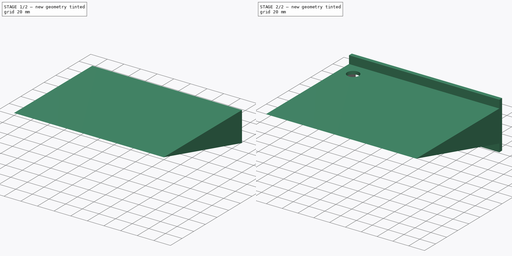
[diagram: build sequence overview — one tinted view per stage of 2, left to right]
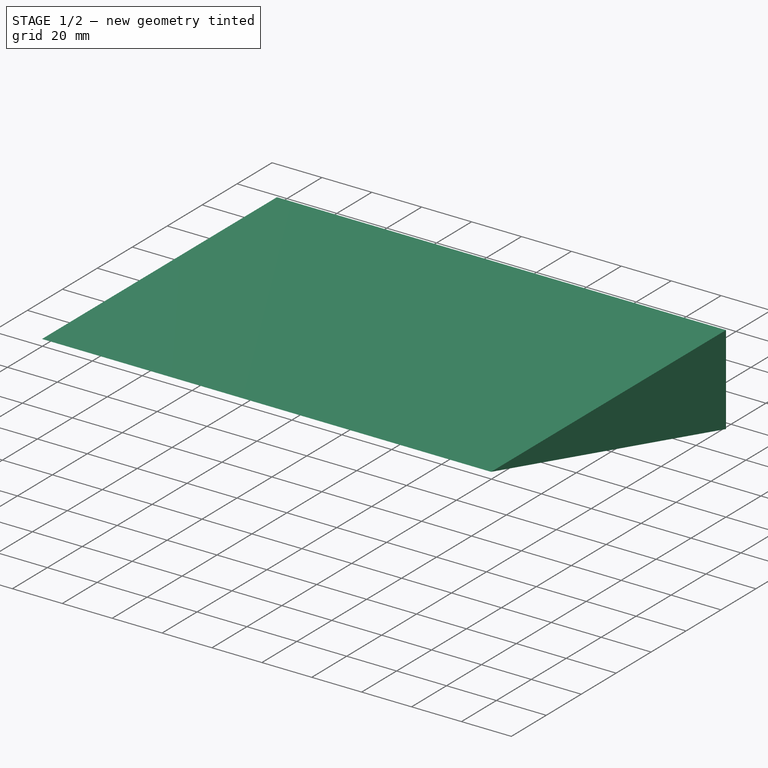
[diagram: stage 1 of 2 — iso view after this stage's code; geometry added in this stage tinted green]
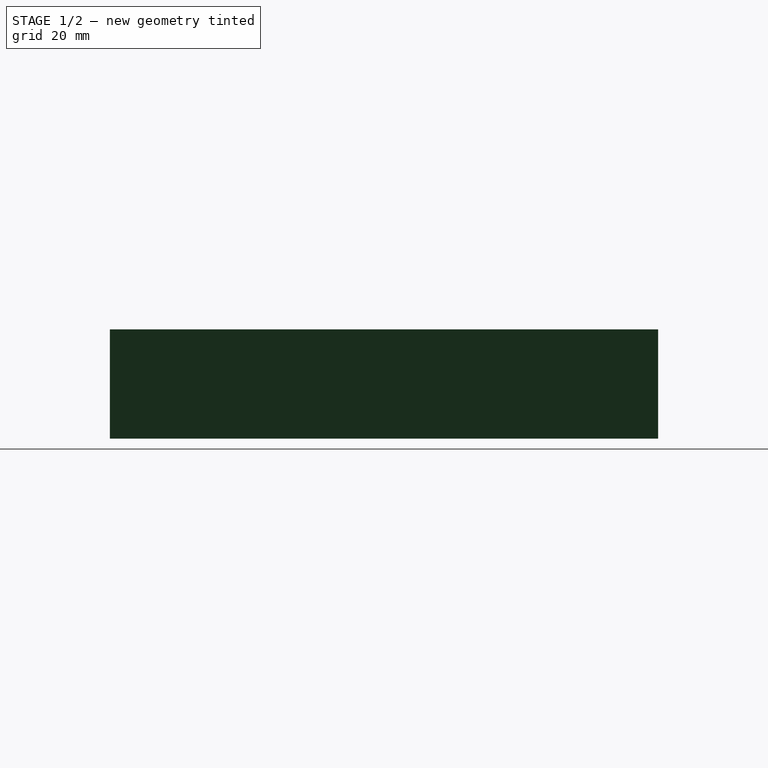
[diagram: stage 1 of 2 — front view after this stage's code; geometry added in this stage tinted green]
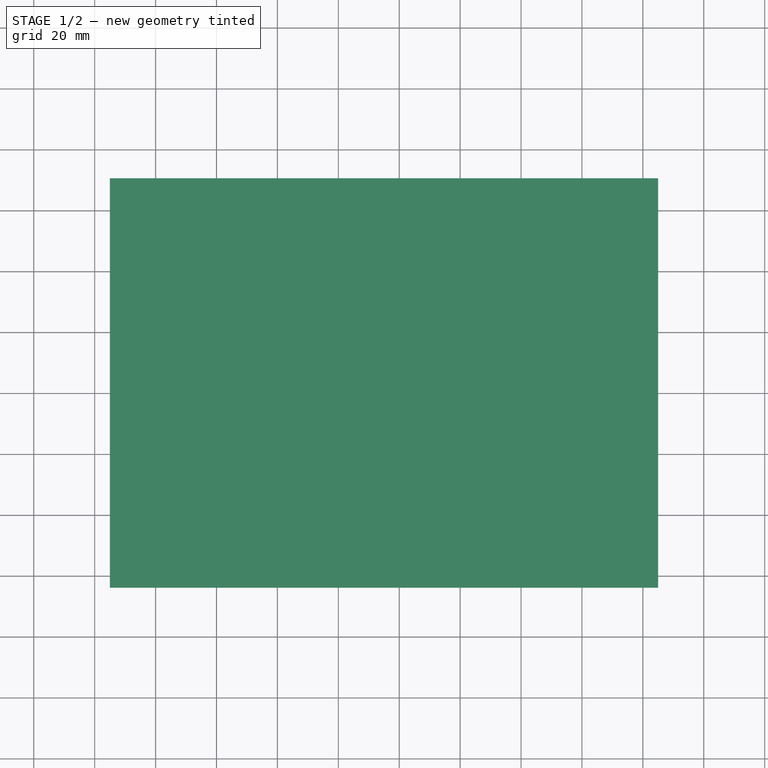
[diagram: stage 1 of 2 — top view after this stage's code; geometry added in this stage tinted green]
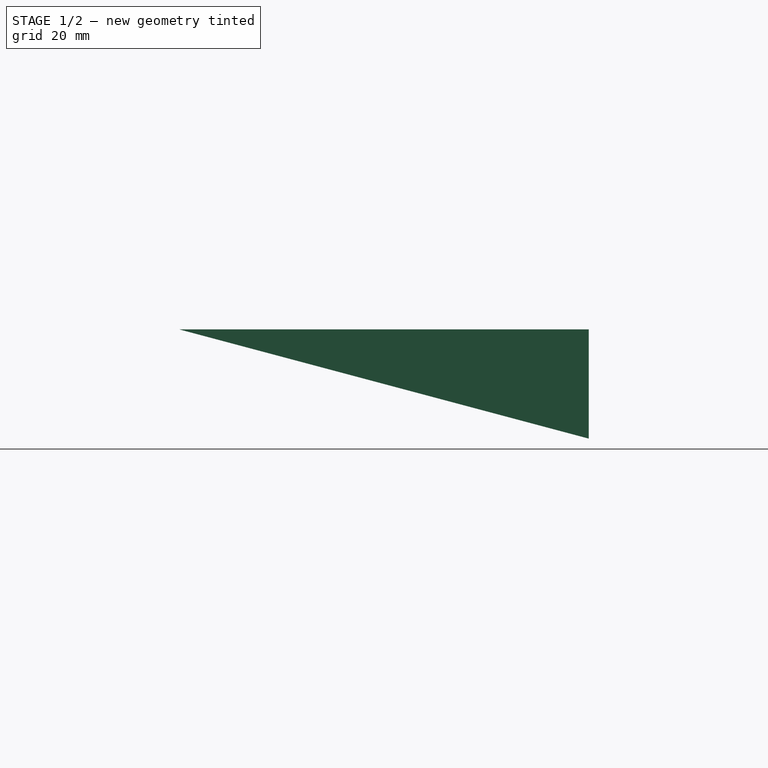
[diagram: stage 1 of 2 — right view after this stage's code; geometry added in this stage tinted green]
FCSTD DOCUMENT  (FreeCAD 0.15R4671 (Git))
Label: Prateleira-Ferramentas 4
License: All rights reserved
LicenseURL: http://en.wikipedia.org/wiki/All_rights_reserved
objects: Sketcher::SketchObject×3, PartDesign::Pad×2, Part::Cut×1, PartDesign::Pocket×1
note: 10 computed .brp shape members not serialized (recipe doc carries the construction recipe); baked Part::Feature solids carry a one-line shape summary decoded from their .brp

FEATURE [Sketcher::SketchObject] Sketch  label="Sketch 01 - Shape Básico"
  Placement = pos=(0,0,0) rot=(0.57735,0.57735,0.57735;2.0944rad)
  sketch-geometry (7):
    g0: LineSegment StartX=-5 StartY=-30 StartZ=0 EndX=0 EndY=-30 EndZ=0
    g1: LineSegment StartX=0 StartY=-30 StartZ=0 EndX=0 EndY=30 EndZ=0
    g2: LineSegment StartX=0 StartY=30 StartZ=0 EndX=-5 EndY=30 EndZ=0
    g3: LineSegment StartX=-5 StartY=30 StartZ=0 EndX=-5 EndY=20 EndZ=0
    g4: LineSegment StartX=-5 StartY=20 StartZ=0 EndX=-155 EndY=20 EndZ=0
    g5: LineSegment StartX=-155 StartY=20 StartZ=0 EndX=-5 EndY=-20 EndZ=0
    g6: LineSegment StartX=-5 StartY=-20 StartZ=0 EndX=-5 EndY=-30 EndZ=0
  constraints (21):
    c: PointOnObject(g0,g-2)
    c: Horizontal(g0)
    c: Coincident(g0,g1)
    c: Vertical(g1)
    c: Coincident(g1,g2)
    c: Horizontal(g2)
    c: Coincident(g2,g3)
    c: Vertical(g3)
    c: Coincident(g3,g4)
    c: Horizontal(g4)
    c: Coincident(g4,g5)
    c: Coincident(g6,g0)
    c: Vertical(g6)
    c: DistanceX(g2) = -5
    c: DistanceY(g1) = 60
    c: DistanceX(g4) = -150
    c: Coincident(g5,g6)
    c: Equal(g0,g2)
    c: DistanceY(g6) = -10
    c: DistanceY(g3) = -10
    c: Symmetric(g1,g1,g-1)
FEATURE [PartDesign::Pad] Pad  label="Pad 01 - Prateleira"
  Length = 190
  Length2 = 100
  Placement = pos=(0,0,0) rot=(0.57735,0.57735,0.57735;2.0944rad)
  Sketch = -> Sketch
  Type = 0
FEATURE [Sketcher::SketchObject] Sketch001  label="Sketch 02 - Shape Básico de Dentro"
  ExternalGeometry = -> [Pad]
  Placement = pos=(5,0,0) rot=(0.57735,0.57735,0.57735;2.0944rad)
  sketch-geometry (3):
    g0: LineSegment StartX=10 StartY=16 StartZ=0 EndX=-124.476 EndY=16 EndZ=0
    g1: LineSegment StartX=-124.476 StartY=16 StartZ=0 EndX=10 EndY=-19.8602 EndZ=0
    g2: LineSegment StartX=10 StartY=-19.8602 StartZ=0 EndX=10 EndY=16 EndZ=0
  constraints (9):
    c: Horizontal(g0)
    c: Coincident(g0,g1)
    c: Coincident(g1,g2)
    c: Coincident(g2,g0)
    c: Vertical(g2)
    c: Distance(g-1,g2) = 10
    c: Distance(g-3,g0) = 4
    c: Distance(g-4,g1) = 4
    c: Distance(g0,g-4) = 4
FEATURE [PartDesign::Pad] Pad001  label="Pad 02 - Triangulo Interno"
  Length = 180
  Length2 = 100
  Placement = pos=(5,0,0) rot=(0.57735,0.57735,0.57735;2.0944rad)
  Sketch = -> Sketch001
  Type = 0
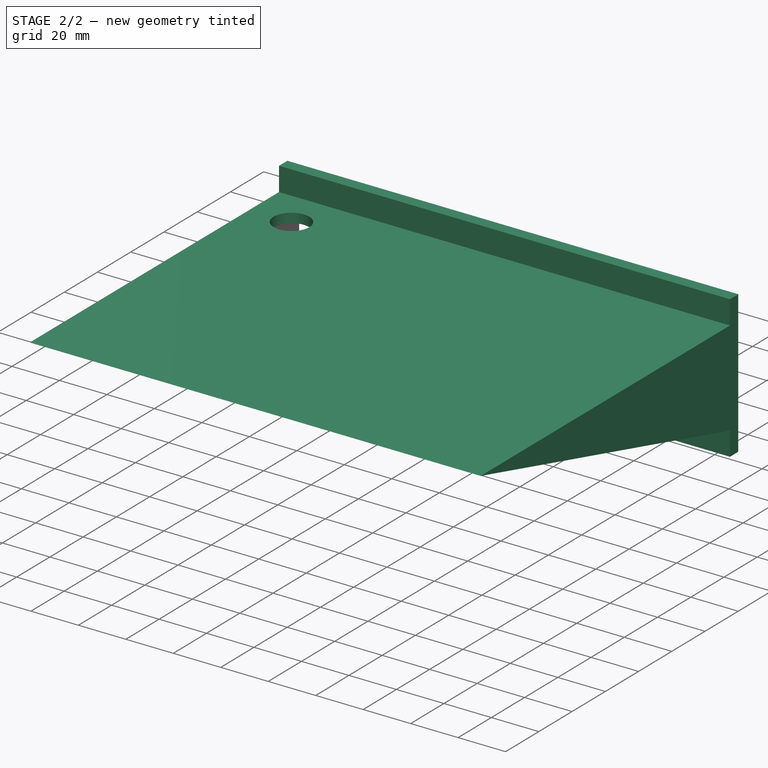
[diagram: stage 2 of 2 — iso view after this stage's code; geometry added in this stage tinted green]
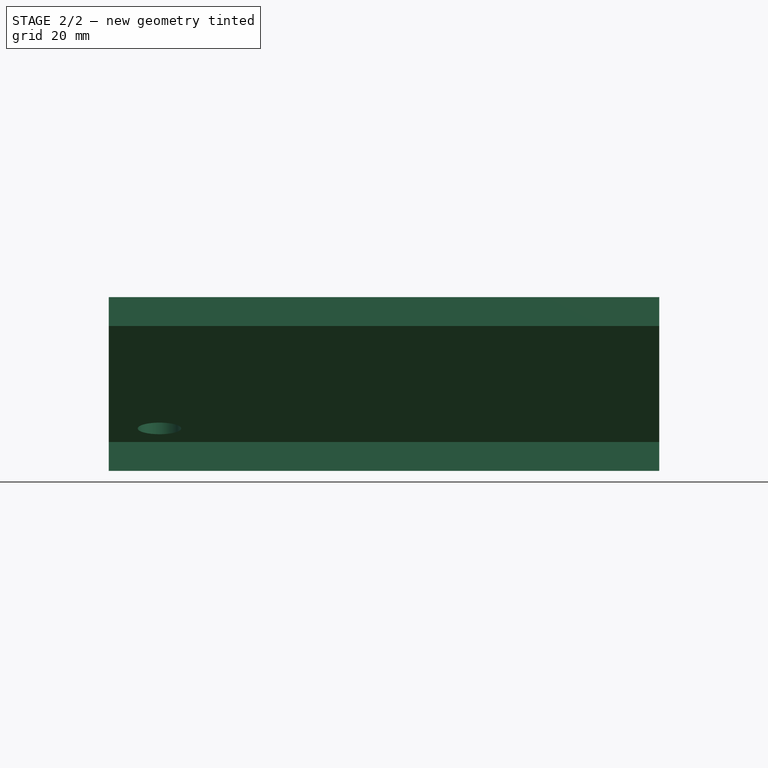
[diagram: stage 2 of 2 — front view after this stage's code; geometry added in this stage tinted green]
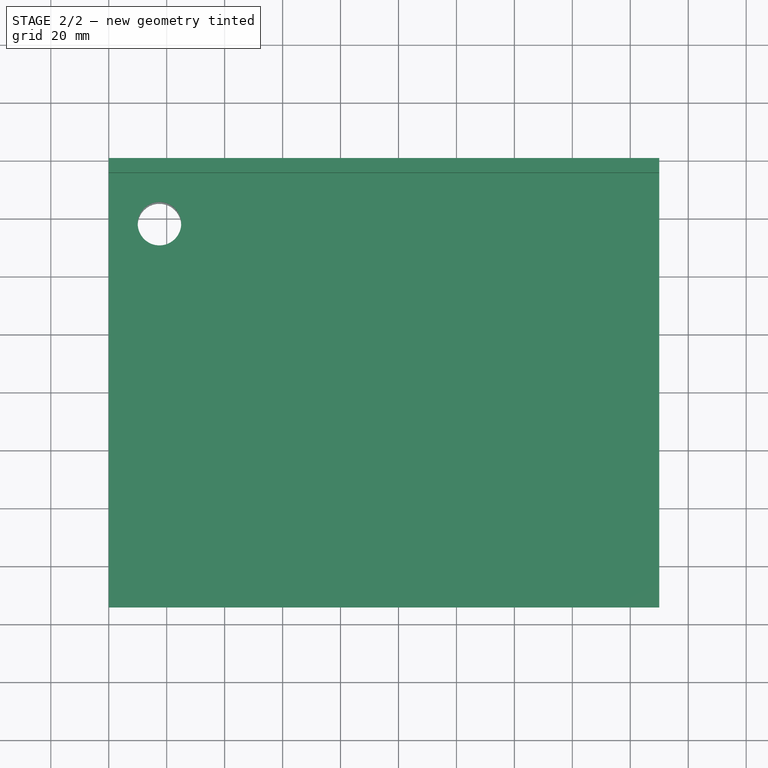
[diagram: stage 2 of 2 — top view after this stage's code; geometry added in this stage tinted green]
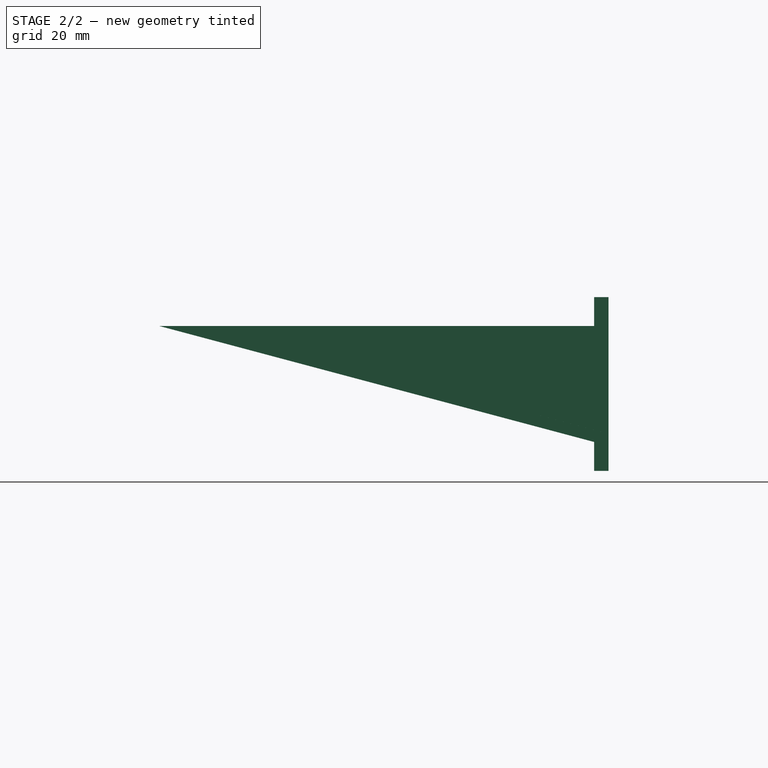
[diagram: stage 2 of 2 — right view after this stage's code; geometry added in this stage tinted green]
FEATURE [Part::Cut] Cut  label="Cut 01 - Prateleira "
  Base = -> Pad
  Tool = -> Pad001
FEATURE [Sketcher::SketchObject] Sketch002  label="Sketch - Shape Burcos Grandes"
  ExternalGeometry = -> [Cut]
  Placement = pos=(0,0,20) rot=(0,0,1;0rad)
  Support = -> Cut [Face13]
  sketch-geometry (1):
    g0: Circle CenterX=17.5 CenterY=-22.5 CenterZ=0 NormalX=0 NormalY=0 NormalZ=1 Radius=7.5
  constraints (3):
    c: Radius(g0) = 7.5
    c: Distance(g0,g-3) = 17.5
    c: Distance(g0,g-4) = 17.5
FEATURE [PartDesign::Pocket] Pocket  label="Pocket 01 - Buracos Grandes"
  Length = 5
  Sketch = -> Sketch002
  Type = 1
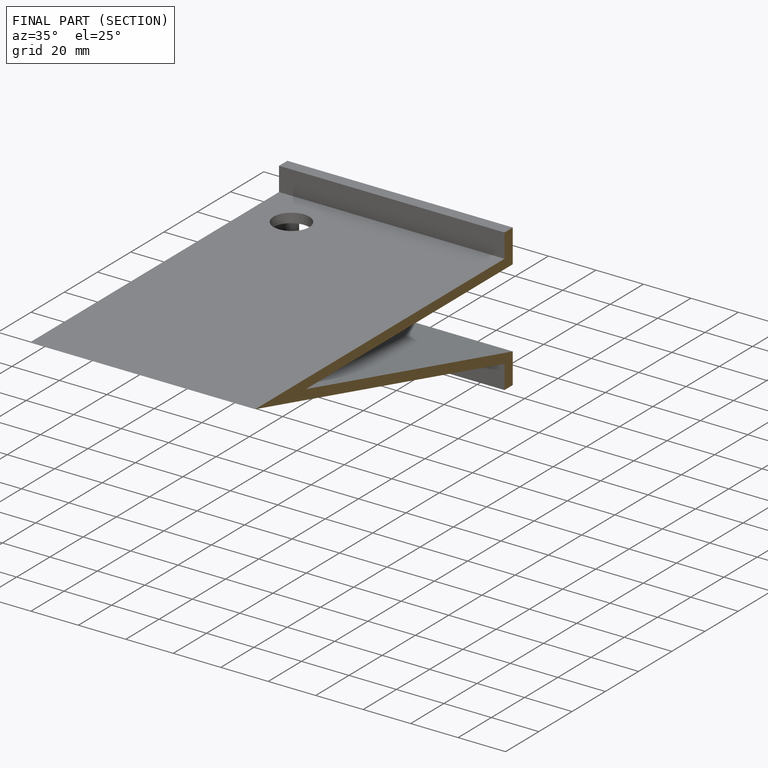
[diagram: finished part — half-section view (interior)]
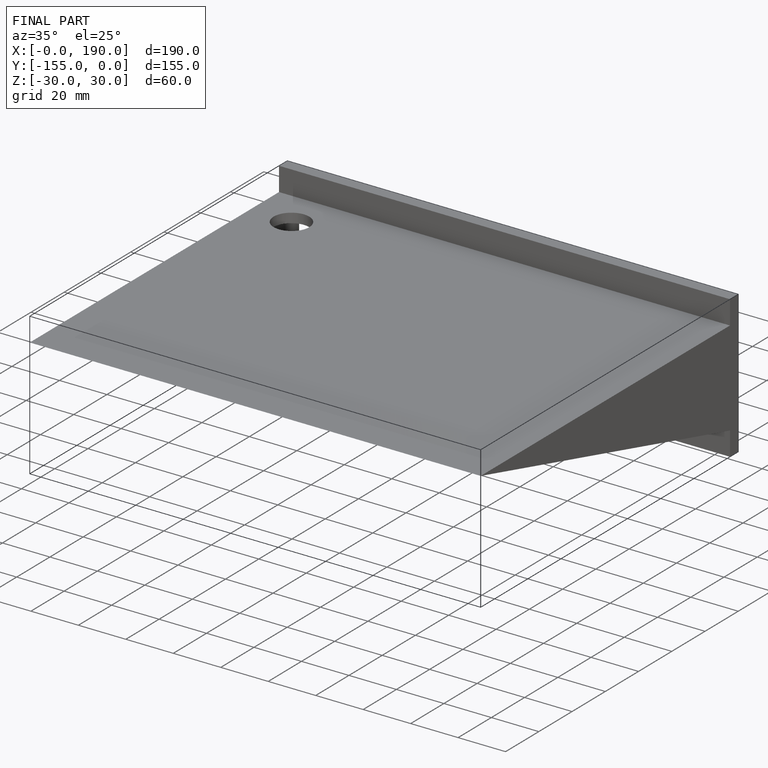
[diagram: finished part — iso view with bounding-box wireframe]
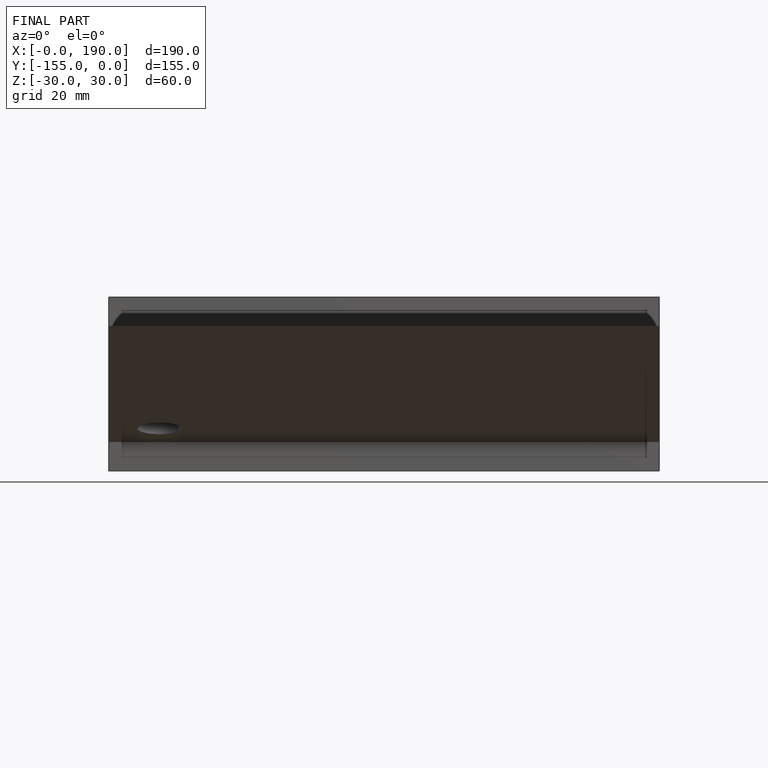
[diagram: finished part — front view with bounding-box wireframe]
